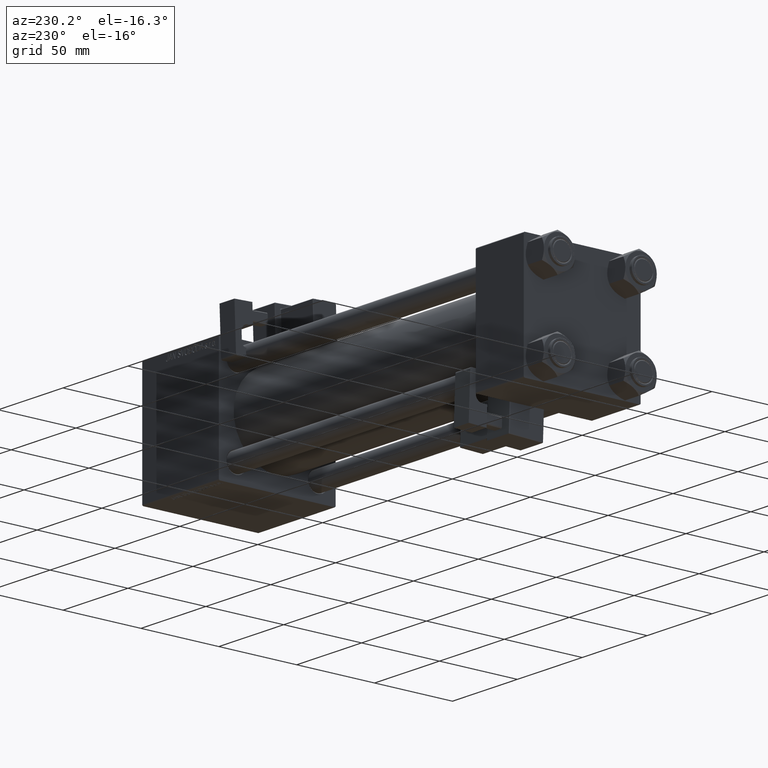
[diagram: clean part render]
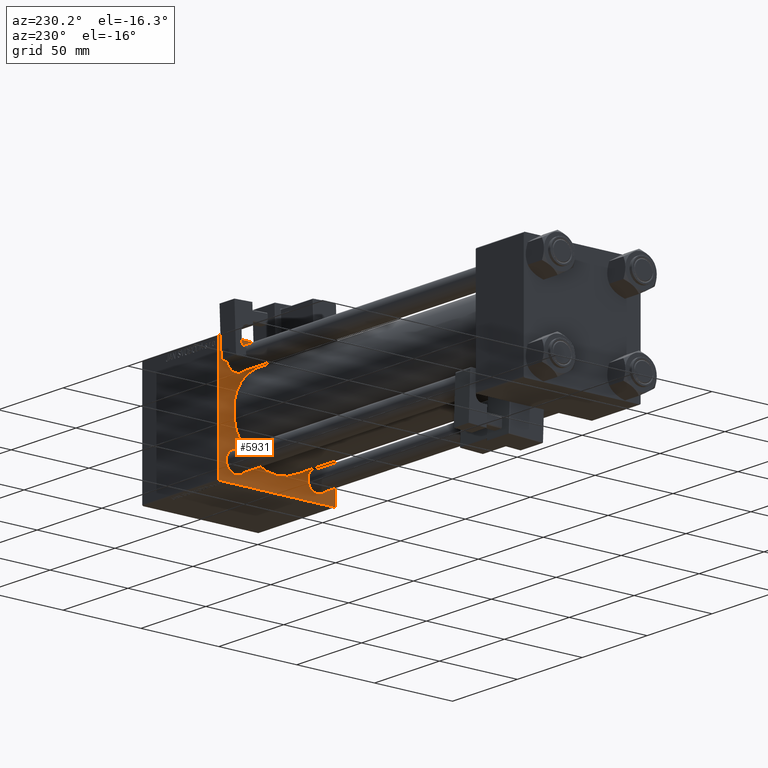
[diagram: same view with one face highlighted and labeled with its STEP entity id]
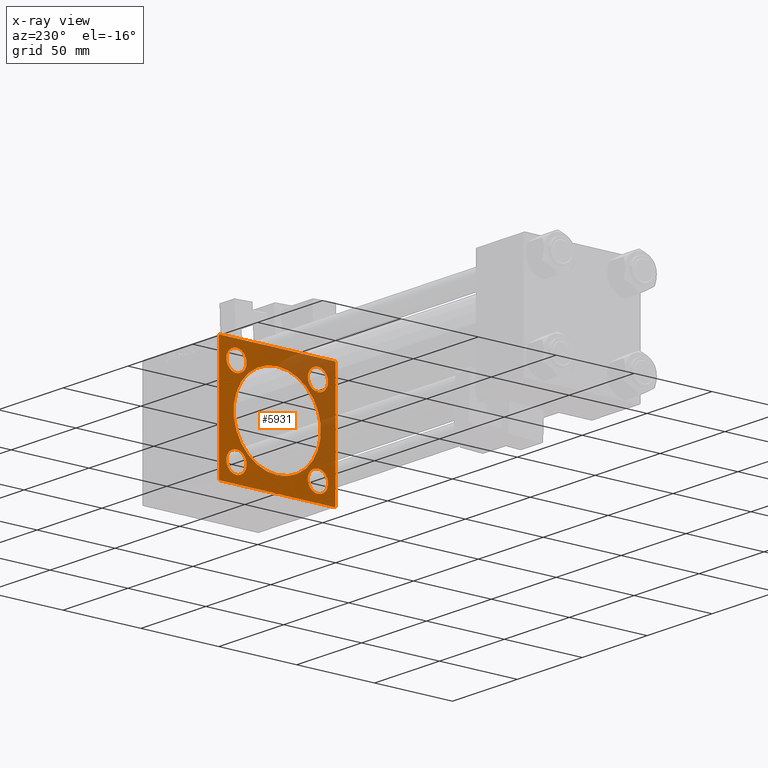
[diagram: x-ray of the same camera — body ghosted, the highlighted face saturated]
A machine part, auxiliary view. The second image highlights one B-rep face of the part: STEP entity #5931.
The next image is the same camera in x-ray: the body ghosted, the highlighted face saturated — about 33% of this face is hidden behind the body in this view.
In plain terms, the highlighted planar face has unit normal (-1, 0, 0).
Its self-contained STEP definition (entity closure, byte-faithful):
#65 = CARTESIAN_POINT ( 'NONE',  ( 235.0000000000000284, 26.14999999999999858, -26.15000000000000213 ) ) ;
#735 = ORIENTED_EDGE ( 'NONE', *, *, #9859, .F. ) ;
#1962 = CARTESIAN_POINT ( 'NONE',  ( 235.0000000000000284, -26.14999999999999147, 32.65000000000003411 ) ) ;
#2226 = FACE_BOUND ( 'NONE', #14910, .T. ) ;
#2704 = CARTESIAN_POINT ( 'NONE',  ( 235.0000000000000284, 37.24999999999894840, 37.25000000000101608 ) ) ;
#2908 = VECTOR ( 'NONE', #51857, 1000.000000000000114 ) ;
#3265 = FACE_BOUND ( 'NONE', #16441, .T. ) ;
#4605 = EDGE_CURVE ( 'NONE', #12989, #14041, #38865, .T. ) ;
#4775 = VERTEX_POINT ( 'NONE', #33780 ) ;
#5058 = DIRECTION ( 'NONE',  ( 0.000000000000000000, 0.000000000000000000, 1.000000000000000000 ) ) ;
#5079 = CARTESIAN_POINT ( 'NONE',  ( 235.0000000000000284, 26.14999999999999858, 26.15000000000000213 ) ) ;
#5140 = CARTESIAN_POINT ( 'NONE',  ( 235.0000000000000284, 37.00000000000000000, -37.50000000000000000 ) ) ;
#5334 = DIRECTION ( 'NONE',  ( 1.000000000000000000, 0.000000000000000000, -0.000000000000000000 ) ) ;
#5532 = VECTOR ( 'NONE', #35394, 1000.000000000000000 ) ;
#5589 = DIRECTION ( 'NONE',  ( 0.000000000000000000, 0.000000000000000000, 1.000000000000000000 ) ) ;
#5767 = ORIENTED_EDGE ( 'NONE', *, *, #38751, .T. ) ;
#5931 = ADVANCED_FACE ( 'NONE', ( #3265, #22707, #22965, #10458, #2226, #14705 ), #18448, .T. ) ;
#6556 = DIRECTION ( 'NONE',  ( 0.000000000000000000, 0.000000000000000000, 1.000000000000000000 ) ) ;
#6820 = EDGE_CURVE ( 'NONE', #8769, #11015, #30215, .T. ) ;
#6821 = DIRECTION ( 'NONE',  ( 0.000000000000000000, 0.000000000000000000, -1.000000000000000000 ) ) ;
#7284 = AXIS2_PLACEMENT_3D ( 'NONE', #52167, #33047, #52444 ) ;
#7383 = AXIS2_PLACEMENT_3D ( 'NONE', #50944, #46945, #6556 ) ;
#7654 = EDGE_CURVE ( 'NONE', #12989, #27828, #20034, .T. ) ;
#8769 = VERTEX_POINT ( 'NONE', #1962 ) ;
#9859 = EDGE_CURVE ( 'NONE', #29877, #12244, #34672, .T. ) ;
#10458 = FACE_BOUND ( 'NONE', #33011, .T. ) ;
#10759 = AXIS2_PLACEMENT_3D ( 'NONE', #12219, #37481, #5058 ) ;
#10875 = CIRCLE ( 'NONE', #52447, 6.500000000000015987 ) ;
#10886 = ORIENTED_EDGE ( 'NONE', *, *, #48433, .T. ) ;
#11015 = VERTEX_POINT ( 'NONE', #11719 ) ;
#11036 = ORIENTED_EDGE ( 'NONE', *, *, #22550, .T. ) ;
#11473 = EDGE_CURVE ( 'NONE', #41051, #27239, #32958, .T. ) ;
#11719 = CARTESIAN_POINT ( 'NONE',  ( 235.0000000000000284, -26.14999999999999147, 19.64999999999999147 ) ) ;
#12017 = DIRECTION ( 'NONE',  ( 0.000000000000000000, 0.000000000000000000, 1.000000000000000000 ) ) ;
#12052 = CARTESIAN_POINT ( 'NONE',  ( 235.0000000000000284, 37.50000000000000000, 37.49999999999999289 ) ) ;
#12219 = CARTESIAN_POINT ( 'NONE',  ( 235.0000000000000284, 26.14999999999999858, 26.15000000000000213 ) ) ;
#12244 = VERTEX_POINT ( 'NONE', #39906 ) ;
#12312 = DIRECTION ( 'NONE',  ( 0.000000000000000000, -1.000000000000000000, -1.850371707708594316E-16 ) ) ;
#12314 = DIRECTION ( 'NONE',  ( 1.000000000000000000, 0.000000000000000000, -0.000000000000000000 ) ) ;
#12375 = VERTEX_POINT ( 'NONE', #49728 ) ;
#12817 = CARTESIAN_POINT ( 'NONE',  ( 235.0000000000000284, 37.50000000000000000, -37.50000000000000000 ) ) ;
#12989 = VERTEX_POINT ( 'NONE', #52260 ) ;
#13120 = DIRECTION ( 'NONE',  ( 0.000000000000000000, 0.000000000000000000, 1.000000000000000000 ) ) ;
#13321 = AXIS2_PLACEMENT_3D ( 'NONE', #19524, #52472, #51682 ) ;
#14017 = LINE ( 'NONE', #26252, #18351 ) ;
#14041 = VERTEX_POINT ( 'NONE', #32606 ) ;
#14243 = ORIENTED_EDGE ( 'NONE', *, *, #25745, .T. ) ;
#14322 = EDGE_CURVE ( 'NONE', #33821, #25111, #10875, .T. ) ;
#14578 = CARTESIAN_POINT ( 'NONE',  ( 235.0000000000000284, -26.14999999999999147, -32.65000000000002700 ) ) ;
#14646 = EDGE_LOOP ( 'NONE', ( #14243, #45874 ) ) ;
#14705 = FACE_OUTER_BOUND ( 'NONE', #43711, .T. ) ;
#14910 = EDGE_LOOP ( 'NONE', ( #10886, #24755 ) ) ;
#15589 = VERTEX_POINT ( 'NONE', #32368 ) ;
#16257 = DIRECTION ( 'NONE',  ( 0.000000000000000000, -1.000000000000000000, 0.000000000000000000 ) ) ;
#16331 = DIRECTION ( 'NONE',  ( 1.000000000000000000, 0.000000000000000000, 0.000000000000000000 ) ) ;
#16441 = EDGE_LOOP ( 'NONE', ( #43893, #25540 ) ) ;
#16774 = EDGE_CURVE ( 'NONE', #14041, #41142, #14017, .T. ) ;
#16874 = DIRECTION ( 'NONE',  ( 0.000000000000000000, 0.000000000000000000, -1.000000000000000000 ) ) ;
#16949 = VERTEX_POINT ( 'NONE', #51727 ) ;
#17107 = CARTESIAN_POINT ( 'NONE',  ( 235.0000000000000284, -26.14999999999999147, -26.15000000000000924 ) ) ;
#17657 = AXIS2_PLACEMENT_3D ( 'NONE', #31929, #48136, #27423 ) ;
#17905 = EDGE_CURVE ( 'NONE', #4775, #15589, #30256, .T. ) ;
#18351 = VECTOR ( 'NONE', #6821, 1000.000000000000000 ) ;
#18448 = PLANE ( 'NONE',  #22526 ) ;
#18688 = AXIS2_PLACEMENT_3D ( 'NONE', #5079, #5334, #5589 ) ;
#18870 = CARTESIAN_POINT ( 'NONE',  ( 235.0000000000000284, 37.25000000000127898, -37.24999999999869260 ) ) ;
#19252 = EDGE_CURVE ( 'NONE', #16949, #12375, #45602, .T. ) ;
#19440 = CARTESIAN_POINT ( 'NONE',  ( 235.0000000000000284, -37.24999999999995737, 37.24999999999995737 ) ) ;
#19524 = CARTESIAN_POINT ( 'NONE',  ( 235.0000000000000284, -2.602085213965210642E-15, 0.000000000000000000 ) ) ;
#19894 = ORIENTED_EDGE ( 'NONE', *, *, #16774, .T. ) ;
#19921 = LINE ( 'NONE', #39859, #30621 ) ;
#20034 = LINE ( 'NONE', #12052, #50628 ) ;
#20114 = CIRCLE ( 'NONE', #44735, 28.00000000000000000 ) ;
#20872 = CARTESIAN_POINT ( 'NONE',  ( 235.0000000000000284, -2.602085213965210642E-15, 0.000000000000000000 ) ) ;
#21625 = ORIENTED_EDGE ( 'NONE', *, *, #31007, .T. ) ;
#21879 = AXIS2_PLACEMENT_3D ( 'NONE', #44258, #40541, #52228 ) ;
#22526 = AXIS2_PLACEMENT_3D ( 'NONE', #31439, #42621, #51123 ) ;
#22550 = EDGE_CURVE ( 'NONE', #27239, #41051, #22685, .T. ) ;
#22685 = CIRCLE ( 'NONE', #52367, 6.500000000000015987 ) ;
#22707 = FACE_BOUND ( 'NONE', #14646, .T. ) ;
#22965 = FACE_BOUND ( 'NONE', #50554, .T. ) ;
#23244 = CARTESIAN_POINT ( 'NONE',  ( 235.0000000000000284, -26.14999999999999147, -19.64999999999999503 ) ) ;
#23977 = ORIENTED_EDGE ( 'NONE', *, *, #4605, .T. ) ;
#24755 = ORIENTED_EDGE ( 'NONE', *, *, #17905, .T. ) ;
#24813 = CARTESIAN_POINT ( 'NONE',  ( 235.0000000000000284, 26.14999999999999858, -32.65000000000001990 ) ) ;
#25111 = VERTEX_POINT ( 'NONE', #48806 ) ;
#25540 = ORIENTED_EDGE ( 'NONE', *, *, #49530, .T. ) ;
#25715 = CARTESIAN_POINT ( 'NONE',  ( 235.0000000000000284, 37.50000000000000000, -36.99999999999996447 ) ) ;
#25745 = EDGE_CURVE ( 'NONE', #12375, #16949, #33950, .T. ) ;
#26111 = CIRCLE ( 'NONE', #7383, 6.500000000000015987 ) ;
#26252 = CARTESIAN_POINT ( 'NONE',  ( 235.0000000000000284, 37.50000000000000000, 37.49999999999999289 ) ) ;
#27239 = VERTEX_POINT ( 'NONE', #23244 ) ;
#27423 = DIRECTION ( 'NONE',  ( 0.000000000000000000, 0.000000000000000000, 1.000000000000000000 ) ) ;
#27828 = VERTEX_POINT ( 'NONE', #37173 ) ;
#29877 = VERTEX_POINT ( 'NONE', #30086 ) ;
#30086 = CARTESIAN_POINT ( 'NONE',  ( 235.0000000000000284, -37.50000000000000000, 36.99999999999992184 ) ) ;
#30215 = CIRCLE ( 'NONE', #7284, 6.500000000000015987 ) ;
#30256 = CIRCLE ( 'NONE', #13321, 28.00000000000000000 ) ;
#30621 = VECTOR ( 'NONE', #39600, 1000.000000000000114 ) ;
#31007 = EDGE_CURVE ( 'NONE', #35012, #12244, #19921, .T. ) ;
#31439 = CARTESIAN_POINT ( 'NONE',  ( 235.0000000000000284, 0.000000000000000000, 0.000000000000000000 ) ) ;
#31929 = CARTESIAN_POINT ( 'NONE',  ( 235.0000000000000284, -26.14999999999999147, -26.15000000000000924 ) ) ;
#32368 = CARTESIAN_POINT ( 'NONE',  ( 235.0000000000000284, -2.602085213965210642E-15, 28.00000000000000000 ) ) ;
#32606 = CARTESIAN_POINT ( 'NONE',  ( 235.0000000000000284, 37.50000000000000000, 36.99999999999999289 ) ) ;
#32958 = CIRCLE ( 'NONE', #17657, 6.500000000000015987 ) ;
#33011 = EDGE_LOOP ( 'NONE', ( #11036, #42014 ) ) ;
#33047 = DIRECTION ( 'NONE',  ( 1.000000000000000000, 0.000000000000000000, -0.000000000000000000 ) ) ;
#33780 = CARTESIAN_POINT ( 'NONE',  ( 235.0000000000000284, 8.269258236473784371E-16, -28.00000000000000000 ) ) ;
#33821 = VERTEX_POINT ( 'NONE', #24813 ) ;
#33950 = CIRCLE ( 'NONE', #18688, 6.500000000000008882 ) ;
#34037 = CARTESIAN_POINT ( 'NONE',  ( 235.0000000000000284, -36.99999999999995737, -37.50000000000000000 ) ) ;
#34672 = LINE ( 'NONE', #50877, #47293 ) ;
#34817 = LINE ( 'NONE', #18870, #41831 ) ;
#35012 = VERTEX_POINT ( 'NONE', #34037 ) ;
#35069 = EDGE_CURVE ( 'NONE', #41142, #51061, #34817, .T. ) ;
#35394 = DIRECTION ( 'NONE',  ( 0.000000000000000000, 0.7071067811865672237, -0.7071067811865279218 ) ) ;
#36172 = LINE ( 'NONE', #19440, #2908 ) ;
#36744 = ORIENTED_EDGE ( 'NONE', *, *, #7654, .F. ) ;
#37173 = CARTESIAN_POINT ( 'NONE',  ( 235.0000000000000284, -36.99999999999994316, 37.49999999999997868 ) ) ;
#37481 = DIRECTION ( 'NONE',  ( 1.000000000000000000, 0.000000000000000000, -0.000000000000000000 ) ) ;
#38751 = EDGE_CURVE ( 'NONE', #29877, #27828, #36172, .T. ) ;
#38816 = CIRCLE ( 'NONE', #21879, 6.500000000000015987 ) ;
#38865 = LINE ( 'NONE', #2704, #5532 ) ;
#38912 = DIRECTION ( 'NONE',  ( 0.000000000000000000, -9.251858538542972814E-17, -1.000000000000000000 ) ) ;
#39257 = ORIENTED_EDGE ( 'NONE', *, *, #49593, .T. ) ;
#39600 = DIRECTION ( 'NONE',  ( 0.000000000000000000, -0.7071067811865474617, 0.7071067811865474617 ) ) ;
#39859 = CARTESIAN_POINT ( 'NONE',  ( 235.0000000000000284, -37.24999999999997158, -37.24999999999997158 ) ) ;
#39906 = CARTESIAN_POINT ( 'NONE',  ( 235.0000000000000284, -37.50000000000000711, -36.99999999999995026 ) ) ;
#40541 = DIRECTION ( 'NONE',  ( 1.000000000000000000, 0.000000000000000000, -0.000000000000000000 ) ) ;
#41051 = VERTEX_POINT ( 'NONE', #14578 ) ;
#41142 = VERTEX_POINT ( 'NONE', #25715 ) ;
#41831 = VECTOR ( 'NONE', #51282, 1000.000000000000000 ) ;
#42014 = ORIENTED_EDGE ( 'NONE', *, *, #11473, .T. ) ;
#42621 = DIRECTION ( 'NONE',  ( -1.000000000000000000, -0.000000000000000000, 0.000000000000000000 ) ) ;
#43711 = EDGE_LOOP ( 'NONE', ( #48740, #21625, #735, #5767, #36744, #23977, #19894, #44830 ) ) ;
#43893 = ORIENTED_EDGE ( 'NONE', *, *, #6820, .T. ) ;
#44258 = CARTESIAN_POINT ( 'NONE',  ( 235.0000000000000284, 26.14999999999999858, -26.15000000000000213 ) ) ;
#44735 = AXIS2_PLACEMENT_3D ( 'NONE', #20872, #16331, #16874 ) ;
#44830 = ORIENTED_EDGE ( 'NONE', *, *, #35069, .T. ) ;
#44982 = DIRECTION ( 'NONE',  ( 1.000000000000000000, 0.000000000000000000, -0.000000000000000000 ) ) ;
#45280 = EDGE_CURVE ( 'NONE', #51061, #35012, #52414, .T. ) ;
#45602 = CIRCLE ( 'NONE', #10759, 6.500000000000008882 ) ;
#45874 = ORIENTED_EDGE ( 'NONE', *, *, #19252, .T. ) ;
#46945 = DIRECTION ( 'NONE',  ( 1.000000000000000000, 0.000000000000000000, -0.000000000000000000 ) ) ;
#47156 = VECTOR ( 'NONE', #16257, 1000.000000000000000 ) ;
#47293 = VECTOR ( 'NONE', #38912, 1000.000000000000000 ) ;
#48136 = DIRECTION ( 'NONE',  ( 1.000000000000000000, 0.000000000000000000, -0.000000000000000000 ) ) ;
#48433 = EDGE_CURVE ( 'NONE', #15589, #4775, #20114, .T. ) ;
#48740 = ORIENTED_EDGE ( 'NONE', *, *, #45280, .T. ) ;
#48806 = CARTESIAN_POINT ( 'NONE',  ( 235.0000000000000284, 26.14999999999999858, -19.64999999999998792 ) ) ;
#49530 = EDGE_CURVE ( 'NONE', #11015, #8769, #26111, .T. ) ;
#49593 = EDGE_CURVE ( 'NONE', #25111, #33821, #38816, .T. ) ;
#49728 = CARTESIAN_POINT ( 'NONE',  ( 235.0000000000000284, 26.14999999999999858, 32.65000000000001990 ) ) ;
#50554 = EDGE_LOOP ( 'NONE', ( #39257, #50807 ) ) ;
#50628 = VECTOR ( 'NONE', #12312, 1000.000000000000000 ) ;
#50807 = ORIENTED_EDGE ( 'NONE', *, *, #14322, .T. ) ;
#50877 = CARTESIAN_POINT ( 'NONE',  ( 235.0000000000000284, -37.50000000000000000, 37.49999999999997868 ) ) ;
#50944 = CARTESIAN_POINT ( 'NONE',  ( 235.0000000000000284, -26.14999999999999147, 26.15000000000000924 ) ) ;
#51061 = VERTEX_POINT ( 'NONE', #5140 ) ;
#51123 = DIRECTION ( 'NONE',  ( 0.000000000000000000, 0.000000000000000000, 1.000000000000000000 ) ) ;
#51282 = DIRECTION ( 'NONE',  ( -0.000000000000000000, -0.7071067811865230368, -0.7071067811865721087 ) ) ;
#51682 = DIRECTION ( 'NONE',  ( 0.000000000000000000, 0.000000000000000000, -1.000000000000000000 ) ) ;
#51727 = CARTESIAN_POINT ( 'NONE',  ( 235.0000000000000284, 26.14999999999999858, 19.64999999999999147 ) ) ;
#51857 = DIRECTION ( 'NONE',  ( -0.000000000000000000, 0.7071067811865474617, 0.7071067811865474617 ) ) ;
#52167 = CARTESIAN_POINT ( 'NONE',  ( 235.0000000000000284, -26.14999999999999147, 26.15000000000000924 ) ) ;
#52228 = DIRECTION ( 'NONE',  ( 0.000000000000000000, 0.000000000000000000, 1.000000000000000000 ) ) ;
#52260 = CARTESIAN_POINT ( 'NONE',  ( 235.0000000000000284, 36.99999999999997158, 37.49999999999999289 ) ) ;
#52367 = AXIS2_PLACEMENT_3D ( 'NONE', #17107, #12314, #13120 ) ;
#52414 = LINE ( 'NONE', #12817, #47156 ) ;
#52444 = DIRECTION ( 'NONE',  ( 0.000000000000000000, 0.000000000000000000, 1.000000000000000000 ) ) ;
#52447 = AXIS2_PLACEMENT_3D ( 'NONE', #65, #44982, #12017 ) ;
#52472 = DIRECTION ( 'NONE',  ( 1.000000000000000000, 0.000000000000000000, 0.000000000000000000 ) ) ;